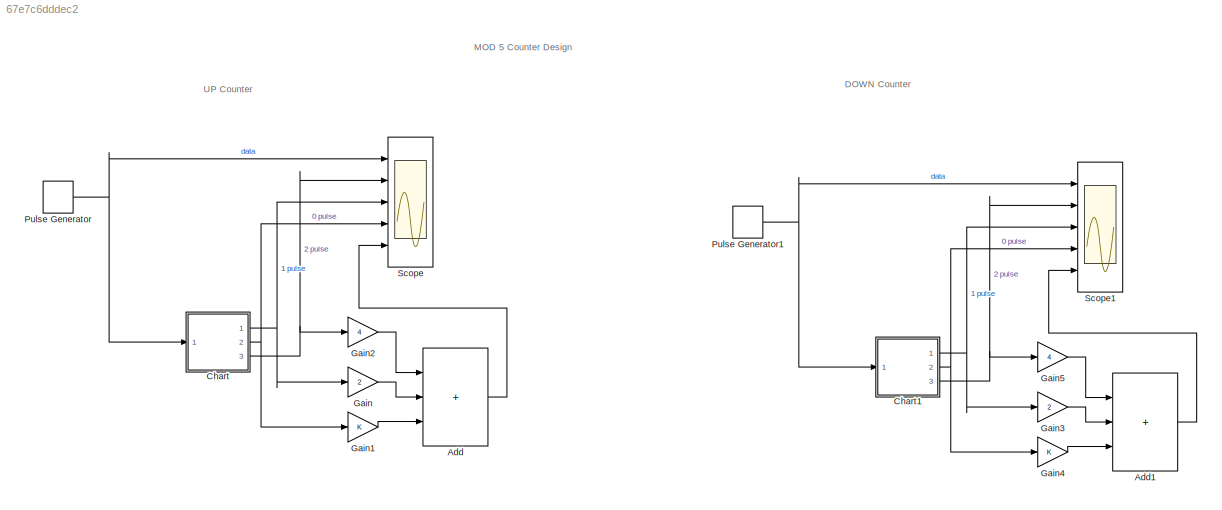
MODEL slx_67e7c6dddec2
KIND model
CONFIG AbsTol = auto
CONFIG EnableMultiTasking = off
CONFIG FixedStep = auto
CONFIG MaxStep = auto
CONFIG MinStep = auto
CONFIG RelTol = 1e-3
CONFIG SampleTimeConstraint = Unconstrained
CONFIG SolverName = VariableStepAuto
CONFIG StartTime = 0.0
CONFIG StopTime = 100
BLOCK [Sum] Add
  IconShape = rectangular
  Inputs = +++
  Ports = [3, 1]
BLOCK [Sum] Add1
  IconShape = rectangular
  Inputs = +++
  Ports = [3, 1]
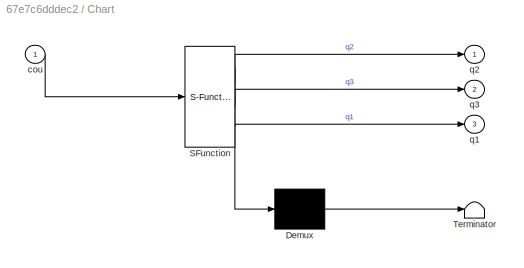
BLOCK [SubSystem] Chart
  ErrorFcn = Stateflow.Translate.translate
  PermitHierarchicalResolution = ExplicitOnly
  Ports = [1, 3]
  RequestExecContextInheritance = off
  SFBlockType = Chart
  TreatAsAtomicUnit = on
BLOCK [Demux] Chart/ Demux 
  Outputs = 1
  Ports = [1, 1]
BLOCK [S-Function] Chart/ SFunction 
  EnableBusSupport = on
  FunctionName = sf_sfun
  PortCounts = [1 4]
  Ports = [1, 4]
  SFcnIsStateOwnerBlock = off
  SFunctionDeploymentMode = off
  Tag = Stateflow S-Function 3
BLOCK [Terminator] Chart/ Terminator 
BLOCK [Inport] Chart/cou
BLOCK [Outport] Chart/q1
  Port = 3
BLOCK [Outport] Chart/q2
BLOCK [Outport] Chart/q3
  Port = 2
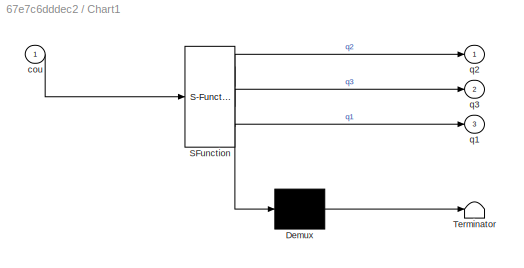
BLOCK [SubSystem] Chart1
  ErrorFcn = Stateflow.Translate.translate
  PermitHierarchicalResolution = ExplicitOnly
  Ports = [1, 3]
  RequestExecContextInheritance = off
  SFBlockType = Chart
  TreatAsAtomicUnit = on
BLOCK [Demux] Chart1/ Demux 
  Outputs = 1
  Ports = [1, 1]
BLOCK [S-Function] Chart1/ SFunction 
  EnableBusSupport = on
  FunctionName = sf_sfun
  PortCounts = [1 4]
  Ports = [1, 4]
  SFcnIsStateOwnerBlock = off
  SFunctionDeploymentMode = off
  Tag = Stateflow S-Function 1
BLOCK [Terminator] Chart1/ Terminator 
BLOCK [Inport] Chart1/cou
BLOCK [Outport] Chart1/q1
  Port = 3
BLOCK [Outport] Chart1/q2
BLOCK [Outport] Chart1/q3
  Port = 2
BLOCK [Gain] Gain
  Gain = 2
BLOCK [Gain] Gain1
BLOCK [Gain] Gain2
  Gain = 4
BLOCK [Gain] Gain3
  Gain = 2
BLOCK [Gain] Gain4
BLOCK [Gain] Gain5
  Gain = 4
BLOCK [DiscretePulseGenerator] Pulse Generator
  Period = 10
  Ports = [0, 1]
  PulseType = Time based
  PulseWidth = 50
BLOCK [DiscretePulseGenerator] Pulse Generator1
  Period = 10
  Ports = [0, 1]
  PulseType = Time based
  PulseWidth = 50
BLOCK [Scope] Scope
  Floating = off
  NumInputPorts = 5
  Ports = [5]
  ScopeSpecificationString = Simulink.scopes.TimeScopeBlockCfg('CurrentConfiguration', extmgr.ConfigurationSet(extmgr.Configuration('Core','General UI',true),extmgr.Configuration('Core','Source UI',true),extmgr.Configuration('Sources','WiredSimulink',true),extmgr.Configuration('Visuals','Time Domain',true,'SerializedDisplays',{struct('MinYLimReal','-0.125','MaxYLimReal','1.125','YLabelReal','','MinYLimMag','0.00000','MaxYLimM...<+4760ch>
BLOCK [Scope] Scope1
  Floating = off
  NumInputPorts = 5
  Ports = [5]
  ScopeSpecificationString = Simulink.scopes.TimeScopeBlockCfg('CurrentConfiguration', extmgr.ConfigurationSet(extmgr.Configuration('Core','General UI',true),extmgr.Configuration('Core','Source UI',true),extmgr.Configuration('Sources','WiredSimulink',true,'DataLoggingVariableName','ScopeData1'),extmgr.Configuration('Visuals','Time Domain',true,'SerializedDisplays',{struct('MinYLimReal','-0.125','MaxYLimReal','1.125','YLabelRe...<+4796ch>
ANNOTATION (root): UP Counter
ANNOTATION (root): DOWN Counter
ANNOTATION (root): MOD 5 Counter Design
LINE Add1:1 -> Scope1:5
LINE Add:1 -> Scope:5
NET Chart1:1 -> Gain3:1, Scope1:3
NET Chart1:2 -> Gain4:1, Scope1:4
NET Chart1:3 -> Gain5:1, Scope1:2
NET Chart:1 -> Gain:1, Scope:3
NET Chart:2 -> Gain1:1, Scope:4
NET Chart:3 -> Gain2:1, Scope:2
LINE Gain1:1 -> Add:3
LINE Gain2:1 -> Add:1
LINE Gain3:1 -> Add1:2
LINE Gain4:1 -> Add1:3
LINE Gain5:1 -> Add1:1
LINE Gain:1 -> Add:2
NET Pulse Generator1:1 -> Chart1:1, Scope1:1
NET Pulse Generator:1 -> Chart:1, Scope:1
note: NET lines group one-source signal fan-out (src -> all destinations, sorted); 1:1 wires keep LINE
CHART Chart1 states=10 transitions=11
  STATE_LABEL 'a_case5\nentry:\nq1=1;\nq2=0;\nq3=0;'
  STATE_LABEL 'a_case1\nentry:\nq1=0;\nq2=0;\nq3=0;'
  STATE_LABEL 'a000\nentry:\nq1=0;\nq2=0;\nq3=0;'
  STATE_LABEL 'a0004\nentry:\nq1=1;\nq2=0;\nq3=0;'
  STATE_LABEL 'a0001\nentry:\nq1=0;\nq2=0;\nq3=1;'
  STATE_LABEL 'a_case4\nentry:\nq1=0;\nq2=1;\nq3=1;'
  STATE_LABEL 'a_case2\nentry:\nq1=0;\nq2=0;\nq3=1;'
  STATE_LABEL 'a0003\nentry:\nq1=0;\nq2=1;\nq3=1;'
  STATE_LABEL 'a0002\nentry:\nq1=0;\nq2=1;\nq3=0;'
  STATE_LABEL 'a_case3\nentry:\nq1=0;\nq2=1;\nq3=0;'
CHART Chart states=10 transitions=11
  STATE_LABEL 'a_case5\nentry:\nq1=1;\nq2=0;\nq3=0;'
  STATE_LABEL 'a_case1\nentry:\nq1=0;\nq2=0;\nq3=0;'
  STATE_LABEL 'a000\nentry:\nq1=0;\nq2=0;\nq3=0;'
  STATE_LABEL 'a0004\nentry:\nq1=1;\nq2=0;\nq3=0;'
  STATE_LABEL 'a0001\nentry:\nq1=0;\nq2=0;\nq3=1;'
  STATE_LABEL 'a_case4\nentry:\nq1=0;\nq2=1;\nq3=1;'
  STATE_LABEL 'a_case2\nentry:\nq1=0;\nq2=0;\nq3=1;'
  STATE_LABEL 'a0003\nentry:\nq1=0;\nq2=1;\nq3=1;'
  STATE_LABEL 'a0002\nentry:\nq1=0;\nq2=1;\nq3=0;'
  STATE_LABEL 'a_case3\nentry:\nq1=0;\nq2=1;\nq3=0;'
CHART  states=0 transitions=0
CHART  states=0 transitions=0
